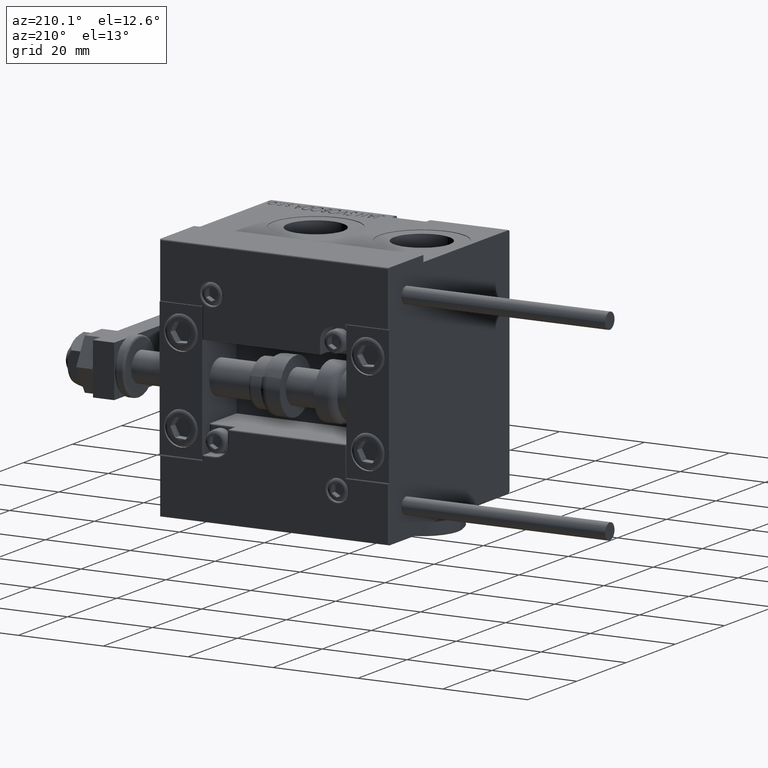
[diagram: clean part render]
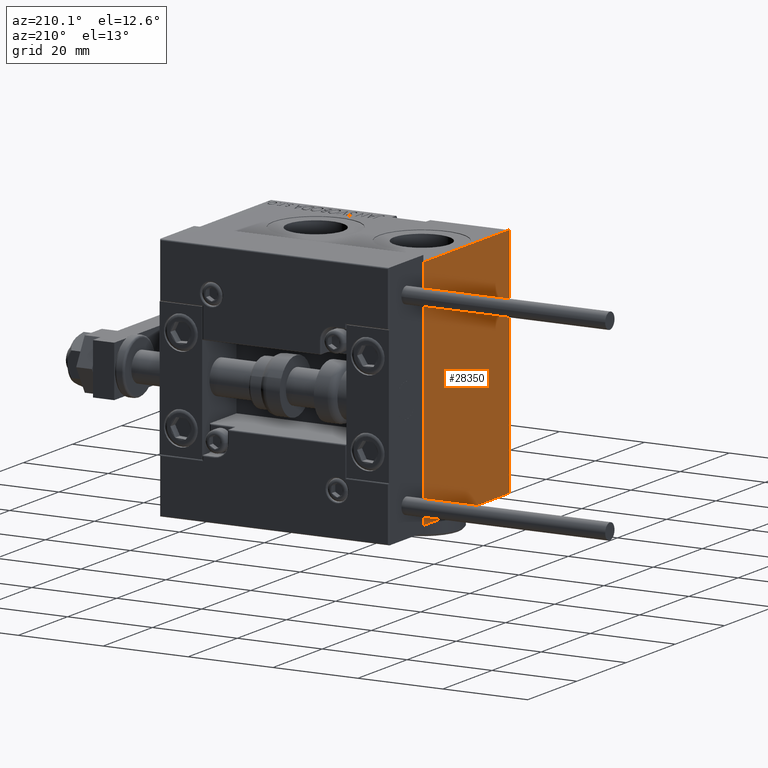
[diagram: same view with one face highlighted and labeled with its STEP entity id]
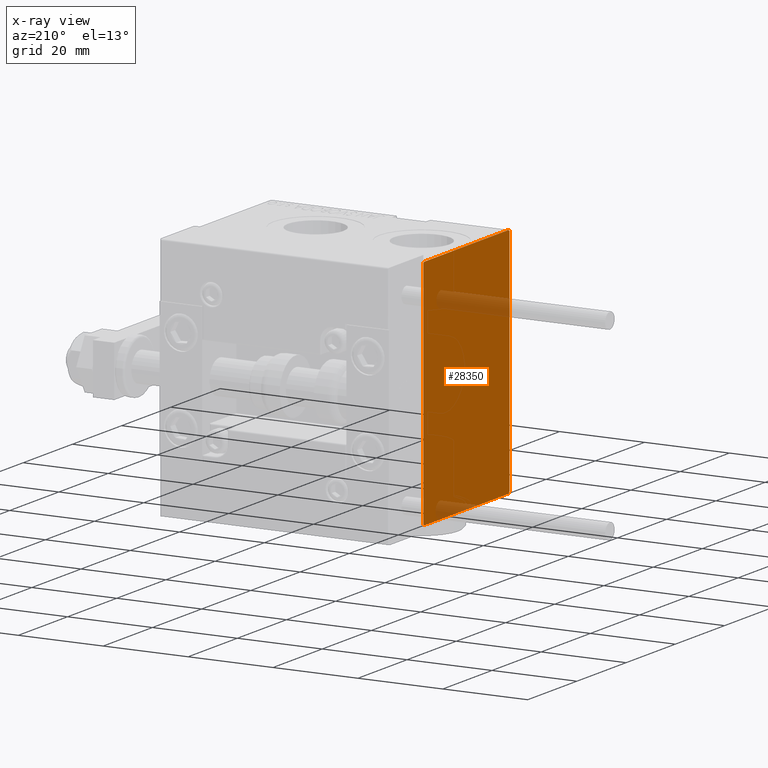
[diagram: x-ray of the same camera — body ghosted, the highlighted face saturated]
A machine part, auxiliary view. The second image highlights one B-rep face of the part: STEP entity #28350.
The next image is the same camera in x-ray: the body ghosted, the highlighted face saturated — about 8% of this face is hidden behind the body in this view.
In plain terms, the highlighted planar face has unit normal (-1, 0, 0).
Its self-contained STEP definition (entity closure, byte-faithful):
#430 = VECTOR ( 'NONE', #50066, 1000.000000000000000 ) ;
#1016 = DIRECTION ( 'NONE',  ( 0.000000000000000000, -0.7071067811865474617, -0.7071067811865474617 ) ) ;
#1264 = LINE ( 'NONE', #43707, #15054 ) ;
#1386 = EDGE_LOOP ( 'NONE', ( #32230, #14701, #1649, #15671, #38919, #14982, #14462, #43642 ) ) ;
#1391 = EDGE_CURVE ( 'NONE', #4673, #47859, #30204, .T. ) ;
#1649 = ORIENTED_EDGE ( 'NONE', *, *, #28259, .T. ) ;
#1996 = LINE ( 'NONE', #34311, #4899 ) ;
#2640 = VERTEX_POINT ( 'NONE', #23787 ) ;
#4673 = VERTEX_POINT ( 'NONE', #30470 ) ;
#4899 = VECTOR ( 'NONE', #44934, 1000.000000000000000 ) ;
#5172 = CARTESIAN_POINT ( 'NONE',  ( 56.00000000000000000, -17.49999999999999645, 27.49999999999999289 ) ) ;
#6668 = CARTESIAN_POINT ( 'NONE',  ( 56.00000000000000000, -17.49999999999999645, -27.19999999999999929 ) ) ;
#9447 = VERTEX_POINT ( 'NONE', #20759 ) ;
#10274 = CARTESIAN_POINT ( 'NONE',  ( 56.00000000000000000, -17.49999999999999645, -27.50000000000000000 ) ) ;
#10763 = CARTESIAN_POINT ( 'NONE',  ( 56.00000000000000000, 0.000000000000000000, 0.000000000000000000 ) ) ;
#10952 = VERTEX_POINT ( 'NONE', #38419 ) ;
#11143 = VECTOR ( 'NONE', #1016, 1000.000000000000114 ) ;
#12328 = AXIS2_PLACEMENT_3D ( 'NONE', #10763, #23708, #38434 ) ;
#13768 = EDGE_CURVE ( 'NONE', #23285, #2640, #15115, .T. ) ;
#14219 = EDGE_CURVE ( 'NONE', #47859, #46007, #1264, .T. ) ;
#14462 = ORIENTED_EDGE ( 'NONE', *, *, #1391, .T. ) ;
#14701 = ORIENTED_EDGE ( 'NONE', *, *, #13768, .T. ) ;
#14982 = ORIENTED_EDGE ( 'NONE', *, *, #29517, .T. ) ;
#15054 = VECTOR ( 'NONE', #17054, 1000.000000000000114 ) ;
#15115 = LINE ( 'NONE', #34529, #24176 ) ;
#15671 = ORIENTED_EDGE ( 'NONE', *, *, #20925, .T. ) ;
#17054 = DIRECTION ( 'NONE',  ( -0.000000000000000000, 0.7071067811865474617, -0.7071067811865474617 ) ) ;
#17875 = CARTESIAN_POINT ( 'NONE',  ( 56.00000000000000000, 17.49999999999999645, 27.50000000000000000 ) ) ;
#19553 = PLANE ( 'NONE',  #12328 ) ;
#19865 = EDGE_CURVE ( 'NONE', #46007, #23285, #49831, .T. ) ;
#20759 = CARTESIAN_POINT ( 'NONE',  ( 56.00000000000000000, 17.20000000000000284, 27.50000000000000000 ) ) ;
#20925 = EDGE_CURVE ( 'NONE', #42157, #9447, #40578, .T. ) ;
#21780 = EDGE_CURVE ( 'NONE', #9447, #10952, #37525, .T. ) ;
#23285 = VERTEX_POINT ( 'NONE', #25941 ) ;
#23485 = VECTOR ( 'NONE', #33666, 1000.000000000000000 ) ;
#23708 = DIRECTION ( 'NONE',  ( 1.000000000000000000, 0.000000000000000000, 0.000000000000000000 ) ) ;
#23787 = CARTESIAN_POINT ( 'NONE',  ( 56.00000000000000000, 17.50000000000000355, -27.19999999999999574 ) ) ;
#24176 = VECTOR ( 'NONE', #38662, 1000.000000000000000 ) ;
#25941 = CARTESIAN_POINT ( 'NONE',  ( 56.00000000000000000, 17.20000000000000284, -27.50000000000000355 ) ) ;
#26559 = FACE_OUTER_BOUND ( 'NONE', #1386, .T. ) ;
#26692 = VECTOR ( 'NONE', #29971, 1000.000000000000000 ) ;
#28259 = EDGE_CURVE ( 'NONE', #2640, #42157, #1996, .T. ) ;
#28350 = ADVANCED_FACE ( 'NONE', ( #26559 ), #19553, .T. ) ;
#29243 = VECTOR ( 'NONE', #48341, 999.9999999999998863 ) ;
#29517 = EDGE_CURVE ( 'NONE', #10952, #4673, #48858, .T. ) ;
#29971 = DIRECTION ( 'NONE',  ( 0.000000000000000000, 1.000000000000000000, -9.912705577010325549E-17 ) ) ;
#30204 = LINE ( 'NONE', #5172, #430 ) ;
#30470 = CARTESIAN_POINT ( 'NONE',  ( 56.00000000000000000, -17.49999999999999645, 27.19999999999998508 ) ) ;
#32230 = ORIENTED_EDGE ( 'NONE', *, *, #19865, .T. ) ;
#33110 = CARTESIAN_POINT ( 'NONE',  ( 56.00000000000000000, -22.34999999999998721, 22.34999999999998721 ) ) ;
#33666 = DIRECTION ( 'NONE',  ( 0.000000000000000000, -1.000000000000000000, -1.982541115402065356E-16 ) ) ;
#34311 = CARTESIAN_POINT ( 'NONE',  ( 56.00000000000000000, 17.50000000000000355, -27.50000000000000355 ) ) ;
#34529 = CARTESIAN_POINT ( 'NONE',  ( 56.00000000000000000, 22.35000000000020037, -22.34999999999968523 ) ) ;
#36256 = CARTESIAN_POINT ( 'NONE',  ( 56.00000000000000000, 17.49999999999999645, 27.20000000000000995 ) ) ;
#37525 = LINE ( 'NONE', #17875, #23485 ) ;
#38419 = CARTESIAN_POINT ( 'NONE',  ( 56.00000000000000000, -17.19999999999998863, 27.49999999999999289 ) ) ;
#38434 = DIRECTION ( 'NONE',  ( 0.000000000000000000, 0.000000000000000000, -1.000000000000000000 ) ) ;
#38662 = DIRECTION ( 'NONE',  ( -0.000000000000000000, 0.7071067811865393571, 0.7071067811865556774 ) ) ;
#38919 = ORIENTED_EDGE ( 'NONE', *, *, #21780, .T. ) ;
#40578 = LINE ( 'NONE', #40837, #29243 ) ;
#40837 = CARTESIAN_POINT ( 'NONE',  ( 56.00000000000000000, 22.34999999999990550, 22.35000000000015774 ) ) ;
#42157 = VERTEX_POINT ( 'NONE', #36256 ) ;
#43642 = ORIENTED_EDGE ( 'NONE', *, *, #14219, .T. ) ;
#43707 = CARTESIAN_POINT ( 'NONE',  ( 56.00000000000000000, -22.34999999999999787, -22.34999999999999787 ) ) ;
#44586 = CARTESIAN_POINT ( 'NONE',  ( 56.00000000000000000, -17.19999999999999574, -27.50000000000000000 ) ) ;
#44934 = DIRECTION ( 'NONE',  ( 0.000000000000000000, -1.261617073437677752E-16, 1.000000000000000000 ) ) ;
#46007 = VERTEX_POINT ( 'NONE', #44586 ) ;
#47859 = VERTEX_POINT ( 'NONE', #6668 ) ;
#48341 = DIRECTION ( 'NONE',  ( -0.000000000000000000, -0.7071067811865515695, 0.7071067811865435759 ) ) ;
#48858 = LINE ( 'NONE', #33110, #11143 ) ;
#49831 = LINE ( 'NONE', #10274, #26692 ) ;
#50066 = DIRECTION ( 'NONE',  ( 0.000000000000000000, 0.000000000000000000, -1.000000000000000000 ) ) ;